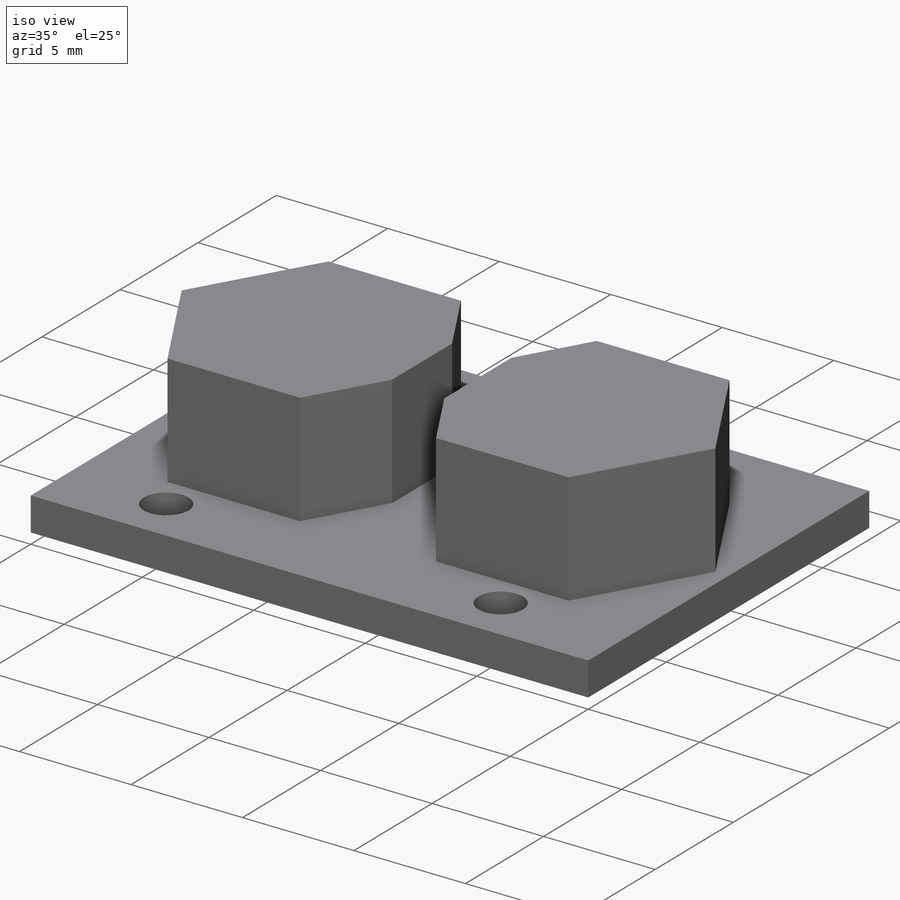
[diagram: iso view]
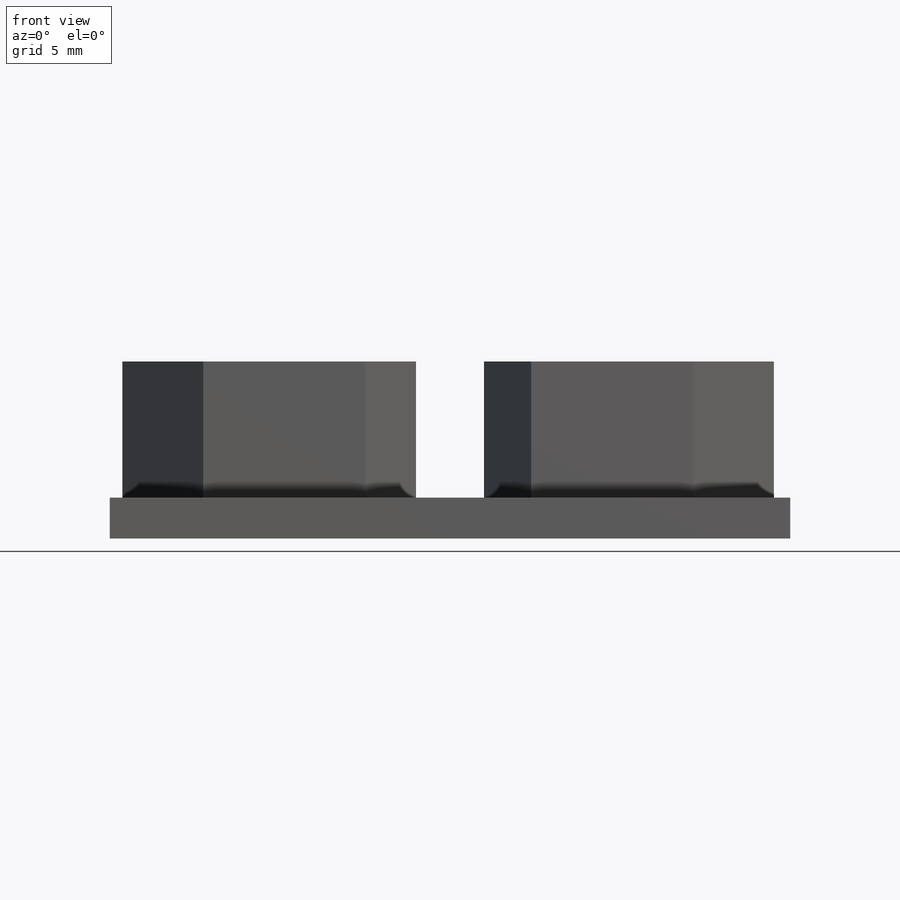
[diagram: front view]
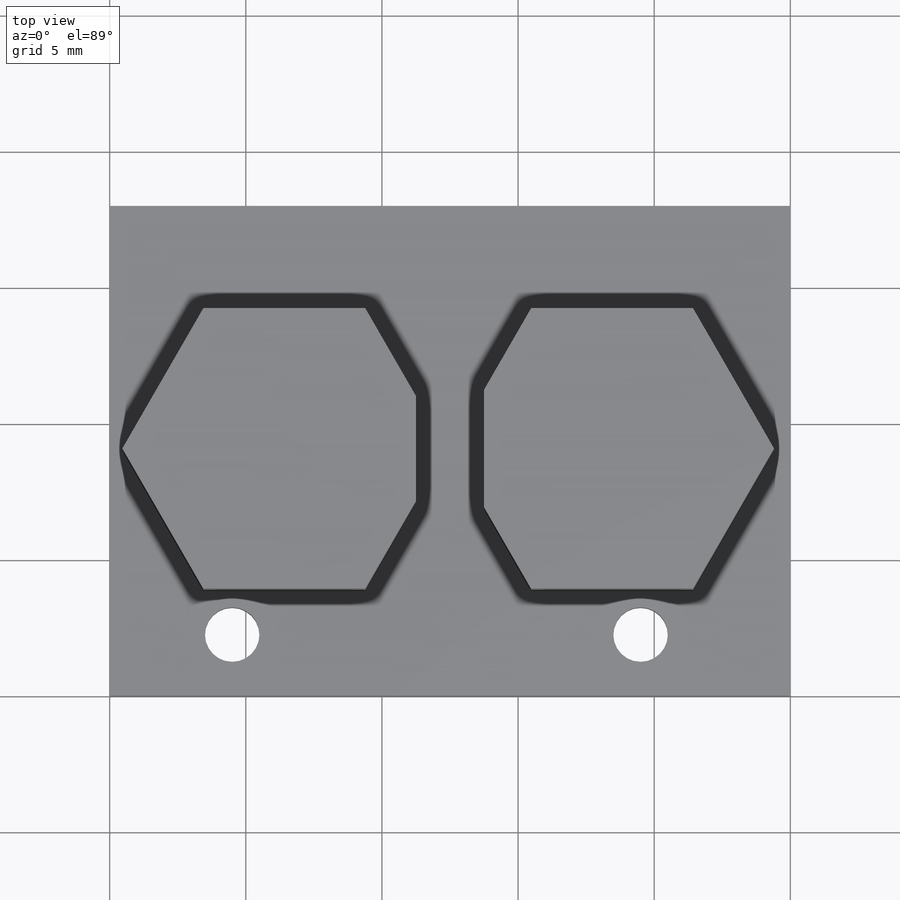
[diagram: top view]
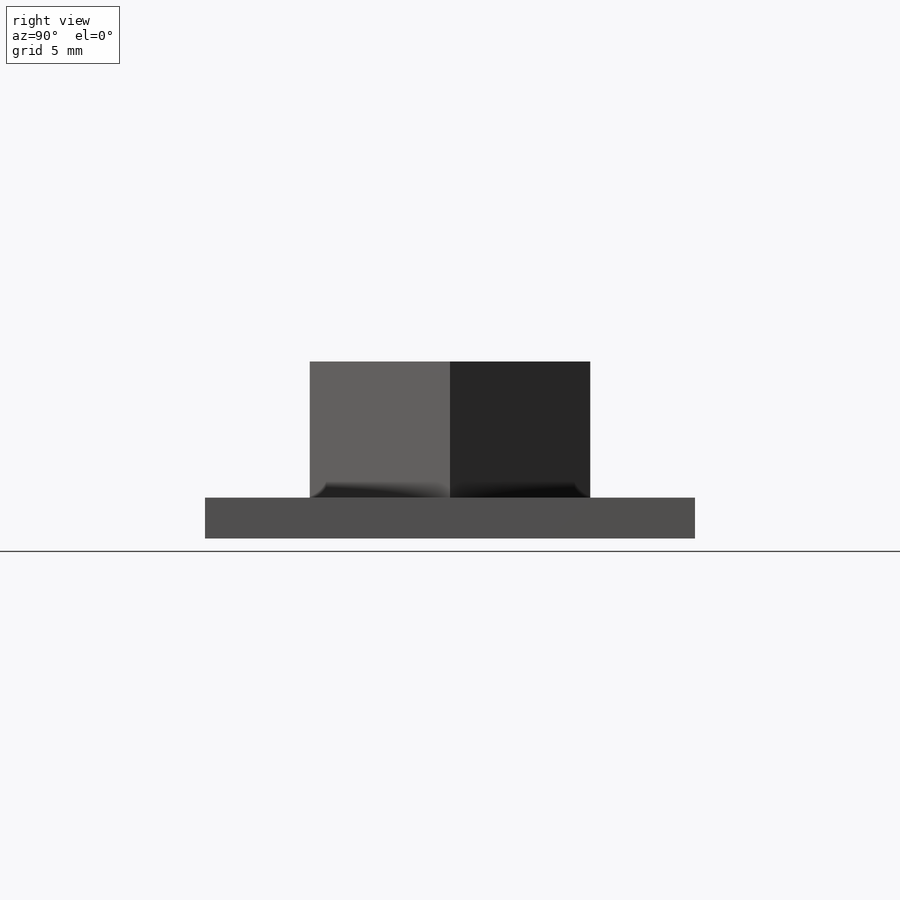
[diagram: right view]
SOLIDWORKS PART (.sldprt)
format: sldprt  version: not decoded by parser v0  size: 202,240 bytes
history: native  units: mm
features: sketch x3, extrude x2, material x1, cut_extrude x1 (+11 scaffold rows collapsed)
feature tree (18):
  scaffold x11  (default folders/planes/origin — collapsed)
  material  "Material <not specified>"
  sketch  "Sketch2"  dims[D1=25.0mm D2=18.0mm]
  extrude  "Boss-Extrude1"  Depth=1.5mm
  sketch  "Sketch3"  dims[c1.D1=10.3mm c1.D2=0.465mm c1.D3=2.5mm c1.D4=15.92mm c2.D1=10.3mm c2.D4=12.04mm]
  extrude  "Boss-Extrude2"  Depth=5mm
  sketch  "Sketch5"  dims[c1.D4=2.0mm c1.D1=2.0mm c1.D2=25.0mm c2.D2=2.0mm c2.D3=2.5mm c2.D5=15.0mm c3.D2=2.25mm]
  cut_extrude  "Cut-Extrude1"  [1 undecoded]
decode coverage: 5 of 6 modeling features carry decoded parameters
note: 1 parameter value undecoded
note: suppression state not decoded; provenance and decode notes live in map.json
